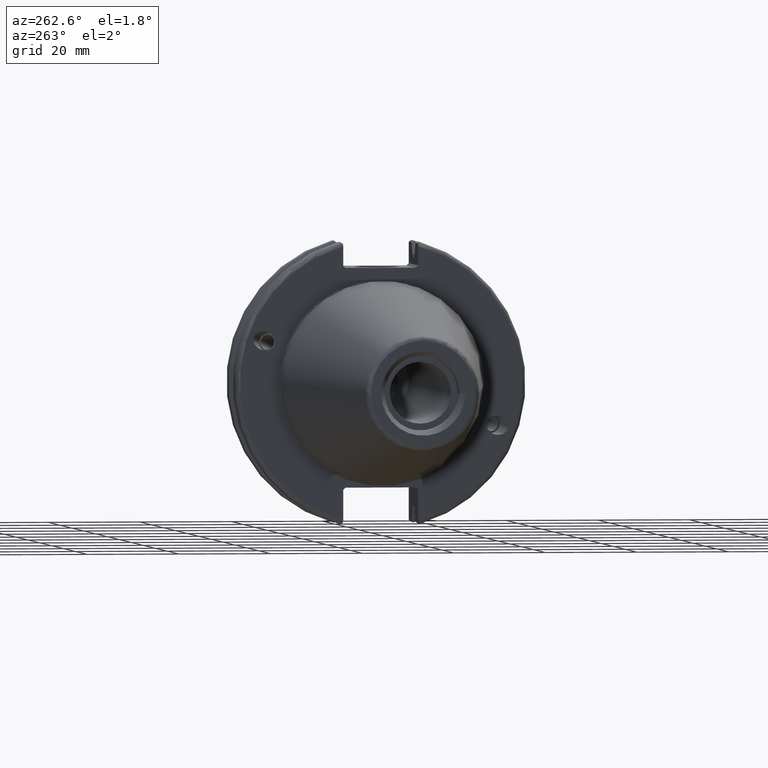
[diagram: clean part render]
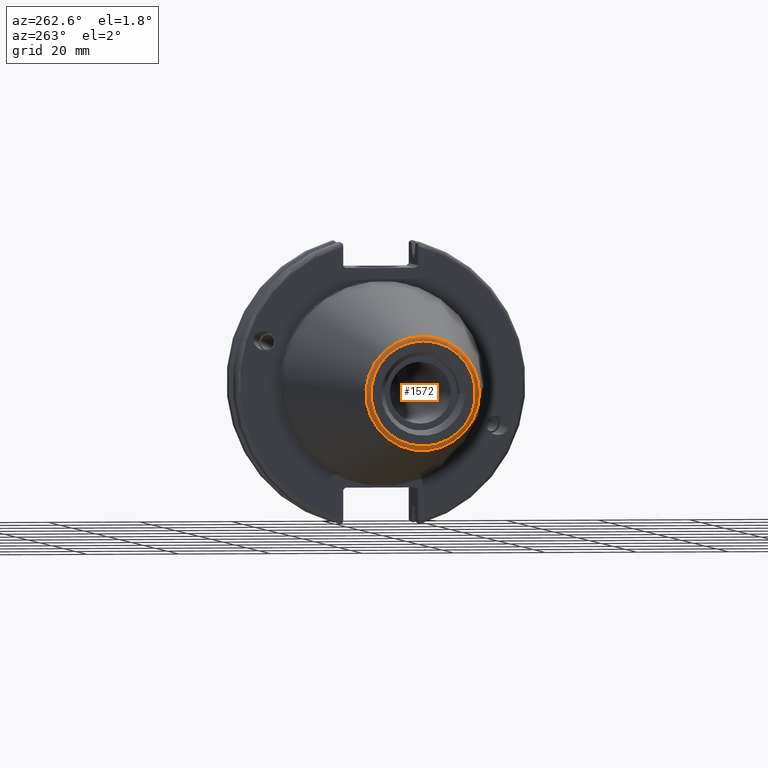
[diagram: same view with one face highlighted and labeled with its STEP entity id]
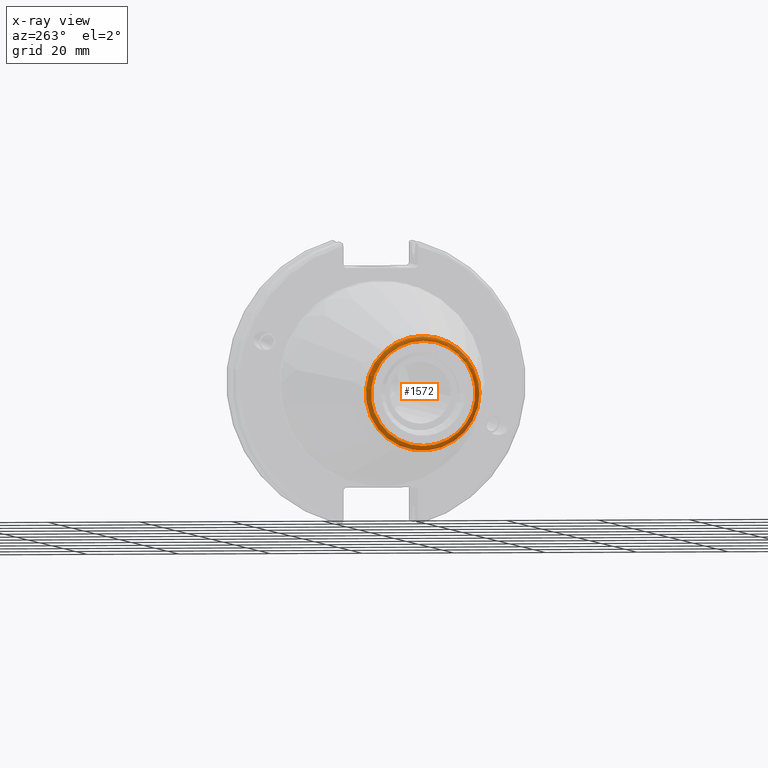
[diagram: x-ray of the same camera — body ghosted, the highlighted face saturated]
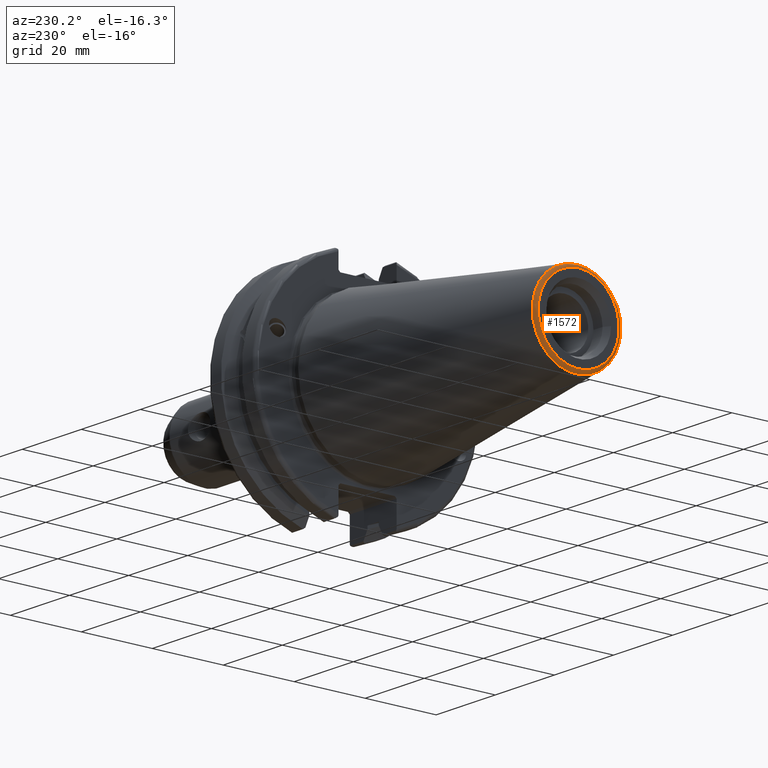
[diagram: same view with one face highlighted and labeled with its STEP entity id]
A machine part, auxiliary view. The second image highlights one B-rep face of the part: STEP entity #1572.
The next image is the same camera in x-ray: the body ghosted, the highlighted face saturated — about 0% of this face is hidden behind the body in this view.
A second angle (auxiliary view) of the same face is appended — the face is thin or edge-on in the first view.
In plain terms, the highlighted toroidal blend (fillet) surface has major radius 11.4071 mm and minor (blend) radius 1 mm.
Its self-contained STEP definition (entity closure, byte-faithful):
#420=FACE_OUTER_BOUND('',#520,.T.);
#520=EDGE_LOOP('',(#1367,#1368,#1369,#1370,#1371));
#614=CIRCLE('',#1761,12.3966635780937);
#615=CIRCLE('',#1762,12.3966635780937);
#616=CIRCLE('',#1763,1.);
#617=CIRCLE('',#1764,11.4071305970304);
#774=VERTEX_POINT('',#3046);
#775=VERTEX_POINT('',#3047);
#776=VERTEX_POINT('',#3050);
#989=EDGE_CURVE('',#774,#775,#614,.T.);
#990=EDGE_CURVE('',#775,#774,#615,.T.);
#991=EDGE_CURVE('',#774,#776,#616,.T.);
#992=EDGE_CURVE('',#776,#776,#617,.T.);
#1367=ORIENTED_EDGE('',*,*,#989,.T.);
#1368=ORIENTED_EDGE('',*,*,#990,.T.);
#1369=ORIENTED_EDGE('',*,*,#991,.T.);
#1370=ORIENTED_EDGE('',*,*,#992,.T.);
#1371=ORIENTED_EDGE('',*,*,#991,.F.);
#1515=TOROIDAL_SURFACE('',#1760,11.4071305970304,1.);
#1572=ADVANCED_FACE('',(#420),#1515,.T.);
#1760=AXIS2_PLACEMENT_3D('',#3045,#2152,#2153);
#1761=AXIS2_PLACEMENT_3D('',#3048,#2154,#2155);
#1762=AXIS2_PLACEMENT_3D('',#3049,#2156,#2157);
#1763=AXIS2_PLACEMENT_3D('',#3051,#2158,#2159);
#1764=AXIS2_PLACEMENT_3D('',#3052,#2160,#2161);
#2152=DIRECTION('center_axis',(1.,0.,0.));
#2153=DIRECTION('ref_axis',(0.,0.,-1.));
#2154=DIRECTION('center_axis',(-1.,0.,0.));
#2155=DIRECTION('ref_axis',(0.,-1.,3.06161699786838E-17));
#2156=DIRECTION('center_axis',(-1.,0.,0.));
#2157=DIRECTION('ref_axis',(0.,-1.,3.06161699786838E-17));
#2158=DIRECTION('center_axis',(0.,-1.,-1.22464679914735E-16));
#2159=DIRECTION('ref_axis',(0.,-1.22464679914735E-16,1.));
#2160=DIRECTION('center_axis',(1.,0.,0.));
#2161=DIRECTION('ref_axis',(0.,-1.,1.83697019872103E-16));
#3045=CARTESIAN_POINT('Origin',(-67.25,0.,0.));
#3046=CARTESIAN_POINT('',(-67.3943068930717,-1.5181534371019E-15,12.3966635780937));
#3047=CARTESIAN_POINT('',(-67.3943068930718,-12.3966635780937,-1.5181534371019E-15));
#3048=CARTESIAN_POINT('Origin',(-67.3943068930717,0.,-1.89769179637738E-15));
#3049=CARTESIAN_POINT('Origin',(-67.3943068930717,0.,-1.89769179637738E-15));
#3050=CARTESIAN_POINT('',(-68.25,-1.39697059731091E-15,11.4071305970304));
#3051=CARTESIAN_POINT('Origin',(-67.25,-1.39697059731091E-15,11.4071305970304));
#3052=CARTESIAN_POINT('Origin',(-68.25,0.,0.));